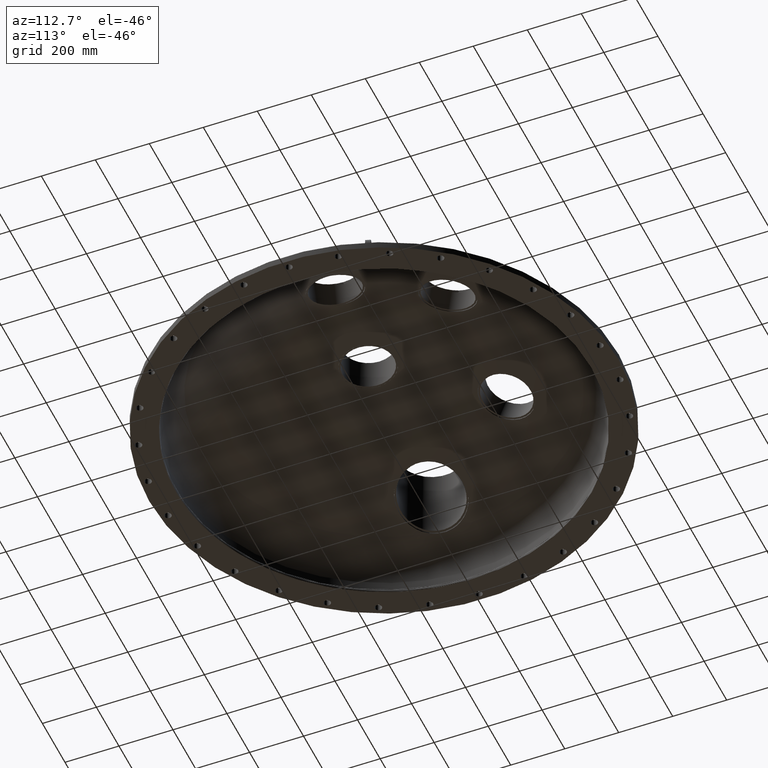
[diagram: clean part render]
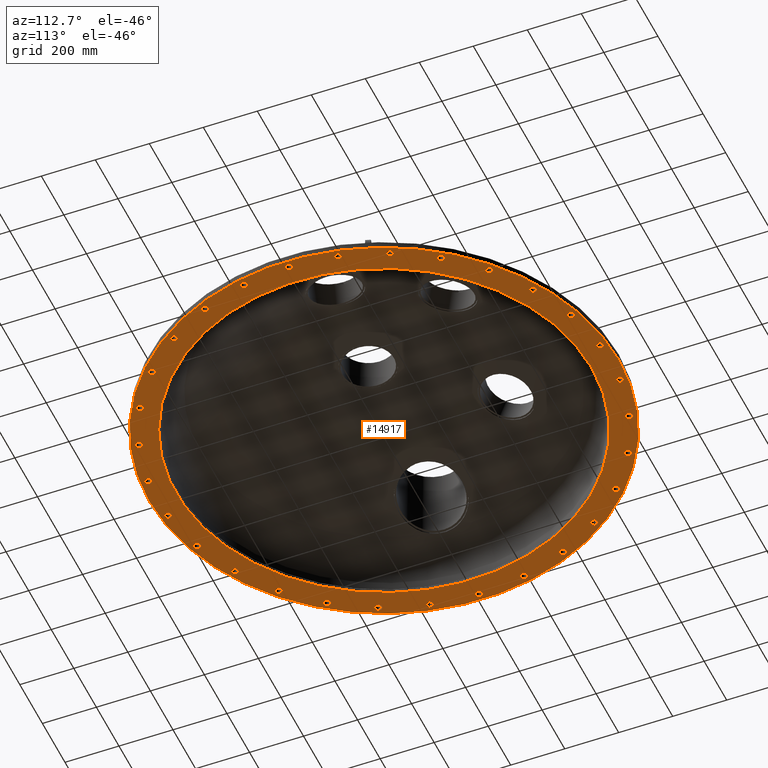
[diagram: same view with one face highlighted and labeled with its STEP entity id]
A machine part, auxiliary view. The second image highlights one B-rep face of the part: STEP entity #14917.
In plain terms, the highlighted planar face has unit normal (-0, 0, -1).
Its self-contained STEP definition (entity closure, byte-faithful):
#36 = VERTEX_POINT ( 'NONE', #17131 ) ;
#45 = VERTEX_POINT ( 'NONE', #23006 ) ;
#155 = AXIS2_PLACEMENT_3D ( 'NONE', #12929, #18678, #1323 ) ;
#189 = CARTESIAN_POINT ( 'NONE',  ( -30.26119328441137668, -12.97315130188538568, -1.076143843439128128E-15 ) ) ;
#289 = ORIENTED_EDGE ( 'NONE', *, *, #23514, .F. ) ;
#350 = AXIS2_PLACEMENT_3D ( 'NONE', #19147, #23032, #7779 ) ;
#366 = ORIENTED_EDGE ( 'NONE', *, *, #19791, .F. ) ;
#410 = EDGE_CURVE ( 'NONE', #12194, #12194, #1667, .T. ) ;
#585 = EDGE_CURVE ( 'NONE', #21558, #21558, #3459, .T. ) ;
#697 = CARTESIAN_POINT ( 'NONE',  ( 16.56249999999963407, -28.68709150035974531, -1.092739197465705287E-15 ) ) ;
#703 = DIRECTION ( 'NONE',  ( -0.0000000000000000000, 3.319070805315438694E-17, -1.000000000000000000 ) ) ;
#709 = VERTEX_POINT ( 'NONE', #12173 ) ;
#743 = ORIENTED_EDGE ( 'NONE', *, *, #9710, .F. ) ;
#840 = CARTESIAN_POINT ( 'NONE',  ( 22.16495133563687858, -24.11667234393895143, -1.076143843439128128E-15 ) ) ;
#988 = FACE_BOUND ( 'NONE', #20936, .T. ) ;
#1067 = AXIS2_PLACEMENT_3D ( 'NONE', #13115, #6971, #1381 ) ;
#1109 = DIRECTION ( 'NONE',  ( -0.0000000000000000000, 3.319070805315438694E-17, -1.000000000000000000 ) ) ;
#1116 = FACE_BOUND ( 'NONE', #19551, .T. ) ;
#1127 = DIRECTION ( 'NONE',  ( -0.0000000000000000000, 3.319070805315438694E-17, -1.000000000000000000 ) ) ;
#1143 = CIRCLE ( 'NONE', #4720, 0.4999999999999973910 ) ;
#1230 = FACE_BOUND ( 'NONE', #2019, .T. ) ;
#1268 = DIRECTION ( 'NONE',  ( 0.0000000000000000000, 1.000000000000000000, 3.319070805315450404E-17 ) ) ;
#1291 = CARTESIAN_POINT ( 'NONE',  ( -33.12500000000000000, 5.649461650897696533E-13, 0.0000000000000000000 ) ) ;
#1323 = DIRECTION ( 'NONE',  ( 0.0000000000000000000, 1.000000000000000000, 3.319070805315450404E-17 ) ) ;
#1381 = DIRECTION ( 'NONE',  ( 0.0000000000000000000, 1.000000000000000000, 3.319070805315450404E-17 ) ) ;
#1393 = EDGE_LOOP ( 'NONE', ( #11438 ) ) ;
#1394 = CARTESIAN_POINT ( 'NONE',  ( 32.40113927430723351, -6.887074758338635583, -1.092739197465705287E-15 ) ) ;
#1405 = EDGE_LOOP ( 'NONE', ( #16371 ) ) ;
#1482 = FACE_BOUND ( 'NONE', #6349, .T. ) ;
#1541 = EDGE_CURVE ( 'NONE', #3334, #3334, #11344, .T. ) ;
#1667 = CIRCLE ( 'NONE', #16798, 0.4999999999999973910 ) ;
#1799 = DIRECTION ( 'NONE',  ( -0.0000000000000000000, 3.319070805315438694E-17, -1.000000000000000000 ) ) ;
#1803 = CARTESIAN_POINT ( 'NONE',  ( 10.23618793867037802, 32.00374710227688269, 1.659535402657718115E-17 ) ) ;
#1810 = EDGE_LOOP ( 'NONE', ( #366 ) ) ;
#1831 = EDGE_CURVE ( 'NONE', #16567, #16567, #15710, .T. ) ;
#1952 = CIRCLE ( 'NONE', #5092, 0.4999999999999973910 ) ;
#1953 = DIRECTION ( 'NONE',  ( 0.0000000000000000000, 1.000000000000000000, 3.319070805315426369E-17 ) ) ;
#2019 = EDGE_LOOP ( 'NONE', ( #18397 ) ) ;
#2243 = DIRECTION ( 'NONE',  ( 0.0000000000000000000, 1.000000000000000000, 3.319070805315450404E-17 ) ) ;
#2278 = EDGE_LOOP ( 'NONE', ( #16097 ) ) ;
#2407 = CARTESIAN_POINT ( 'NONE',  ( 32.40113927430723351, -6.387074758338638247, -1.076143843439128128E-15 ) ) ;
#2414 = CIRCLE ( 'NONE', #16365, 0.4999999999999973910 ) ;
#2553 = CARTESIAN_POINT ( 'NONE',  ( 0.0000000000000000000, 34.25000000000000000, 4.404255335483249784E-17 ) ) ;
#2668 = AXIS2_PLACEMENT_3D ( 'NONE', #8048, #15662, #23286 ) ;
#2697 = AXIS2_PLACEMENT_3D ( 'NONE', #3673, #17157, #7544 ) ;
#2850 = CARTESIAN_POINT ( 'NONE',  ( 30.26119328441100720, -13.47315130188623300, -1.092739197465705287E-15 ) ) ;
#2860 = FACE_BOUND ( 'NONE', #7122, .T. ) ;
#2928 = DIRECTION ( 'NONE',  ( -0.0000000000000000000, 3.319070805315438694E-17, -1.000000000000000000 ) ) ;
#2936 = DIRECTION ( 'NONE',  ( -0.0000000000000000000, 3.319070805315438694E-17, -1.000000000000000000 ) ) ;
#3096 = FACE_BOUND ( 'NONE', #9071, .T. ) ;
#3152 = DIRECTION ( 'NONE',  ( -0.0000000000000000000, 3.319070805315438694E-17, -1.000000000000000000 ) ) ;
#3168 = VERTEX_POINT ( 'NONE', #19888 ) ;
#3216 = DIRECTION ( 'NONE',  ( -0.0000000000000000000, 3.319070805315438694E-17, -1.000000000000000000 ) ) ;
#3334 = VERTEX_POINT ( 'NONE', #6941 ) ;
#3346 = CIRCLE ( 'NONE', #21691, 0.4999999999999973910 ) ;
#3399 = CIRCLE ( 'NONE', #20529, 0.4999999999999973910 ) ;
#3453 = CARTESIAN_POINT ( 'NONE',  ( 33.12500000000000000, -3.485838039915599827E-13, 0.0000000000000000000 ) ) ;
#3459 = CIRCLE ( 'NONE', #2668, 0.4999999999999973910 ) ;
#3640 = VERTEX_POINT ( 'NONE', #21219 ) ;
#3653 = VERTEX_POINT ( 'NONE', #1803 ) ;
#3673 = CARTESIAN_POINT ( 'NONE',  ( 22.16495133563687858, -24.61667234393894788, -1.092739197465705287E-15 ) ) ;
#3787 = CARTESIAN_POINT ( 'NONE',  ( -3.462505345740794382, 32.94353778407408129, 1.092739197465705287E-15 ) ) ;
#4200 = EDGE_CURVE ( 'NONE', #8691, #8691, #1952, .T. ) ;
#4319 = DIRECTION ( 'NONE',  ( -0.0000000000000000000, 3.319070805315438694E-17, -1.000000000000000000 ) ) ;
#4329 = CIRCLE ( 'NONE', #350, 0.4999999999999973910 ) ;
#4538 = ORIENTED_EDGE ( 'NONE', *, *, #21343, .F. ) ;
#4574 = ORIENTED_EDGE ( 'NONE', *, *, #17861, .F. ) ;
#4720 = AXIS2_PLACEMENT_3D ( 'NONE', #1394, #18120, #1268 ) ;
#4878 = DIRECTION ( 'NONE',  ( -0.0000000000000000000, 3.319070805315438694E-17, -1.000000000000000000 ) ) ;
#4944 = FACE_BOUND ( 'NONE', #20340, .T. ) ;
#4973 = DIRECTION ( 'NONE',  ( -0.0000000000000000000, 3.319070805315438694E-17, -1.000000000000000000 ) ) ;
#5000 = CARTESIAN_POINT ( 'NONE',  ( -22.16495133563756070, -24.61667234393834391, -1.092739197465705287E-15 ) ) ;
#5073 = PLANE ( 'NONE',  #14907 ) ;
#5092 = AXIS2_PLACEMENT_3D ( 'NONE', #20017, #2928, #10528 ) ;
#5124 = ORIENTED_EDGE ( 'NONE', *, *, #6311, .F. ) ;
#5196 = EDGE_CURVE ( 'NONE', #20401, #20401, #10124, .T. ) ;
#5261 = DIRECTION ( 'NONE',  ( 0.0000000000000000000, 1.000000000000000000, 3.319070805315438694E-17 ) ) ;
#5324 = FACE_BOUND ( 'NONE', #6558, .T. ) ;
#5343 = ORIENTED_EDGE ( 'NONE', *, *, #8053, .F. ) ;
#5357 = EDGE_LOOP ( 'NONE', ( #18431 ) ) ;
#5483 = EDGE_CURVE ( 'NONE', #7040, #7040, #18535, .T. ) ;
#5675 = ORIENTED_EDGE ( 'NONE', *, *, #11479, .F. ) ;
#5749 = CARTESIAN_POINT ( 'NONE',  ( 3.462505345741263341, 33.44353778407402444, 1.109334551492282250E-15 ) ) ;
#5787 = DIRECTION ( 'NONE',  ( 0.0000000000000000000, 1.000000000000000000, 3.319070805315450404E-17 ) ) ;
#5835 = DIRECTION ( 'NONE',  ( 0.0000000000000000000, 1.000000000000000000, 3.319070805315438694E-17 ) ) ;
#6106 = VERTEX_POINT ( 'NONE', #11976 ) ;
#6145 = VERTEX_POINT ( 'NONE', #13660 ) ;
#6161 = CARTESIAN_POINT ( 'NONE',  ( 0.0000000000000000000, 1.991442483189263278E-18, 0.0000000000000000000 ) ) ;
#6288 = DIRECTION ( 'NONE',  ( -0.0000000000000000000, 3.319070805315438694E-17, -1.000000000000000000 ) ) ;
#6311 = EDGE_CURVE ( 'NONE', #9420, #9420, #3346, .T. ) ;
#6349 = EDGE_LOOP ( 'NONE', ( #19980 ) ) ;
#6383 = CARTESIAN_POINT ( 'NONE',  ( 3.462505345740794382, -32.94353778407408129, -1.092739197465705287E-15 ) ) ;
#6458 = DIRECTION ( 'NONE',  ( -0.0000000000000000000, 3.319070805315438694E-17, -1.000000000000000000 ) ) ;
#6520 = DIRECTION ( 'NONE',  ( 0.0000000000000000000, 1.000000000000000000, 3.319070805315453486E-17 ) ) ;
#6558 = EDGE_LOOP ( 'NONE', ( #14277 ) ) ;
#6566 = DIRECTION ( 'NONE',  ( 0.0000000000000000000, 1.000000000000000000, 3.319070805315450404E-17 ) ) ;
#6602 = AXIS2_PLACEMENT_3D ( 'NONE', #16971, #24590, #2243 ) ;
#6651 = AXIS2_PLACEMENT_3D ( 'NONE', #2850, #1109, #6566 ) ;
#6701 = CARTESIAN_POINT ( 'NONE',  ( 26.79868793866990018, -18.97038648218849133, -1.076143843439128128E-15 ) ) ;
#6706 = FACE_BOUND ( 'NONE', #8394, .T. ) ;
#6824 = FACE_BOUND ( 'NONE', #14022, .T. ) ;
#6871 = AXIS2_PLACEMENT_3D ( 'NONE', #7666, #15296, #5787 ) ;
#6941 = CARTESIAN_POINT ( 'NONE',  ( -3.462505345740794382, 33.44353778407407418, 1.109334551492282250E-15 ) ) ;
#6947 = FACE_BOUND ( 'NONE', #7285, .T. ) ;
#6954 = DIRECTION ( 'NONE',  ( 0.0000000000000000000, 1.000000000000000000, 3.319070805315446090E-17 ) ) ;
#6971 = DIRECTION ( 'NONE',  ( -0.0000000000000000000, 3.319070805315438694E-17, -1.000000000000000000 ) ) ;
#7040 = VERTEX_POINT ( 'NONE', #15053 ) ;
#7122 = EDGE_LOOP ( 'NONE', ( #743 ) ) ;
#7203 = FACE_BOUND ( 'NONE', #18352, .T. ) ;
#7285 = EDGE_LOOP ( 'NONE', ( #18517 ) ) ;
#7488 = CARTESIAN_POINT ( 'NONE',  ( 30.26119328441100720, -12.97315130188623655, -1.076143843439128128E-15 ) ) ;
#7517 = CIRCLE ( 'NONE', #18697, 0.4999999999999973910 ) ;
#7544 = DIRECTION ( 'NONE',  ( 0.0000000000000000000, 1.000000000000000000, 3.319070805315450404E-17 ) ) ;
#7573 = DIRECTION ( 'NONE',  ( 0.0000000000000000000, -3.319070805315438694E-17, 1.000000000000000000 ) ) ;
#7666 = CARTESIAN_POINT ( 'NONE',  ( -32.40113927430742535, -6.887074758337734082, -1.092739197465705287E-15 ) ) ;
#7779 = DIRECTION ( 'NONE',  ( 0.0000000000000000000, 1.000000000000000000, 3.319070805315438694E-17 ) ) ;
#7896 = EDGE_LOOP ( 'NONE', ( #11176 ) ) ;
#8048 = CARTESIAN_POINT ( 'NONE',  ( 32.40113927430738983, 6.887074758337955238, 0.0000000000000000000 ) ) ;
#8053 = EDGE_CURVE ( 'NONE', #12393, #12393, #4329, .T. ) ;
#8162 = AXIS2_PLACEMENT_3D ( 'NONE', #6383, #4878, #12509 ) ;
#8278 = VERTEX_POINT ( 'NONE', #14040 ) ;
#8394 = EDGE_LOOP ( 'NONE', ( #22949 ) ) ;
#8407 = CIRCLE ( 'NONE', #9970, 0.4999999999999973910 ) ;
#8663 = AXIS2_PLACEMENT_3D ( 'NONE', #697, #2936, #17920 ) ;
#8691 = VERTEX_POINT ( 'NONE', #21919 ) ;
#8722 = FACE_BOUND ( 'NONE', #11186, .T. ) ;
#8811 = CARTESIAN_POINT ( 'NONE',  ( -32.40113927430742535, -6.387074758337736746, -1.076143843439128128E-15 ) ) ;
#8834 = FACE_OUTER_BOUND ( 'NONE', #8874, .T. ) ;
#8854 = ORIENTED_EDGE ( 'NONE', *, *, #1831, .F. ) ;
#8874 = EDGE_LOOP ( 'NONE', ( #20641 ) ) ;
#9071 = EDGE_LOOP ( 'NONE', ( #22350 ) ) ;
#9072 = ORIENTED_EDGE ( 'NONE', *, *, #12721, .F. ) ;
#9262 = DIRECTION ( 'NONE',  ( 0.0000000000000000000, 1.000000000000000000, 3.319070805315426369E-17 ) ) ;
#9312 = ORIENTED_EDGE ( 'NONE', *, *, #12318, .T. ) ;
#9420 = VERTEX_POINT ( 'NONE', #17390 ) ;
#9425 = CIRCLE ( 'NONE', #1067, 0.4999999999999973910 ) ;
#9599 = EDGE_LOOP ( 'NONE', ( #9072 ) ) ;
#9710 = EDGE_CURVE ( 'NONE', #3640, #3640, #22545, .T. ) ;
#9762 = EDGE_CURVE ( 'NONE', #22876, #22876, #3399, .T. ) ;
#9970 = AXIS2_PLACEMENT_3D ( 'NONE', #15153, #1799, #20861 ) ;
#9991 = CIRCLE ( 'NONE', #14416, 0.4999999999999973910 ) ;
#10124 = CIRCLE ( 'NONE', #16150, 0.4999999999999973910 ) ;
#10291 = CARTESIAN_POINT ( 'NONE',  ( 26.79868793867031229, 19.47038648218792645, 0.0000000000000000000 ) ) ;
#10297 = EDGE_CURVE ( 'NONE', #36, #36, #9425, .T. ) ;
#10366 = EDGE_CURVE ( 'NONE', #13260, #13260, #15795, .T. ) ;
#10378 = DIRECTION ( 'NONE',  ( 0.0000000000000000000, 1.000000000000000000, 3.319070805315450404E-17 ) ) ;
#10427 = CARTESIAN_POINT ( 'NONE',  ( 16.56249999999963407, -28.18709150035974531, -1.076143843439128128E-15 ) ) ;
#10451 = FACE_BOUND ( 'NONE', #18733, .T. ) ;
#10509 = CARTESIAN_POINT ( 'NONE',  ( 10.23618793866972254, -31.50374710227709585, -1.092739197465705287E-15 ) ) ;
#10528 = DIRECTION ( 'NONE',  ( 0.0000000000000000000, 1.000000000000000000, 3.319070805315438694E-17 ) ) ;
#10571 = AXIS2_PLACEMENT_3D ( 'NONE', #1291, #11007, #5261 ) ;
#10613 = DIRECTION ( 'NONE',  ( 0.0000000000000000000, 1.000000000000000000, 3.319070805315438694E-17 ) ) ;
#10628 = CIRCLE ( 'NONE', #6651, 0.4999999999999973910 ) ;
#10630 = AXIS2_PLACEMENT_3D ( 'NONE', #11025, #16412, #24145 ) ;
#10642 = CIRCLE ( 'NONE', #22637, 0.4999999999999973910 ) ;
#10700 = FACE_BOUND ( 'NONE', #1810, .T. ) ;
#10877 = CARTESIAN_POINT ( 'NONE',  ( 3.462505345741263341, 32.94353778407403155, 1.092739197465705287E-15 ) ) ;
#10903 = CIRCLE ( 'NONE', #15889, 34.25000000000000000 ) ;
#11007 = DIRECTION ( 'NONE',  ( -0.0000000000000000000, 3.319070805315438694E-17, -1.000000000000000000 ) ) ;
#11021 = EDGE_CURVE ( 'NONE', #13870, #13870, #23334, .T. ) ;
#11025 = CARTESIAN_POINT ( 'NONE',  ( -26.79868793866976517, 19.47038648218867607, 0.0000000000000000000 ) ) ;
#11164 = CARTESIAN_POINT ( 'NONE',  ( 26.79868793867031229, 19.97038648218792289, 1.659535402657710719E-17 ) ) ;
#11176 = ORIENTED_EDGE ( 'NONE', *, *, #9762, .F. ) ;
#11186 = EDGE_LOOP ( 'NONE', ( #19158 ) ) ;
#11344 = CIRCLE ( 'NONE', #20917, 0.4999999999999973910 ) ;
#11397 = DIRECTION ( 'NONE',  ( -0.0000000000000000000, 3.319070805315438694E-17, -1.000000000000000000 ) ) ;
#11438 = ORIENTED_EDGE ( 'NONE', *, *, #10297, .F. ) ;
#11472 = VERTEX_POINT ( 'NONE', #7488 ) ;
#11479 = EDGE_CURVE ( 'NONE', #6106, #6106, #10642, .T. ) ;
#11553 = DIRECTION ( 'NONE',  ( 0.0000000000000000000, 1.000000000000000000, 3.319070805315438694E-17 ) ) ;
#11592 = ORIENTED_EDGE ( 'NONE', *, *, #585, .F. ) ;
#11600 = CIRCLE ( 'NONE', #14437, 0.4999999999999973910 ) ;
#11620 = VERTEX_POINT ( 'NONE', #2407 ) ;
#11766 = VERTEX_POINT ( 'NONE', #2553 ) ;
#11976 = CARTESIAN_POINT ( 'NONE',  ( -30.26119328441090062, 13.97315130188644083, 1.659535402657710719E-17 ) ) ;
#12173 = CARTESIAN_POINT ( 'NONE',  ( 0.0000000000000000000, 30.30999999999999872, 1.006010361091109496E-15 ) ) ;
#12194 = VERTEX_POINT ( 'NONE', #6701 ) ;
#12318 = EDGE_CURVE ( 'NONE', #709, #709, #18621, .T. ) ;
#12393 = VERTEX_POINT ( 'NONE', #16151 ) ;
#12458 = DIRECTION ( 'NONE',  ( 0.0000000000000000000, 1.000000000000000000, 3.319070805315438694E-17 ) ) ;
#12509 = DIRECTION ( 'NONE',  ( 0.0000000000000000000, 1.000000000000000000, 3.319070805315450404E-17 ) ) ;
#12516 = CIRCLE ( 'NONE', #155, 0.4999999999999973910 ) ;
#12518 = EDGE_CURVE ( 'NONE', #23560, #23560, #15051, .T. ) ;
#12573 = FACE_BOUND ( 'NONE', #9599, .T. ) ;
#12581 = CARTESIAN_POINT ( 'NONE',  ( -10.23618793866951115, 31.50374710227715980, 0.0000000000000000000 ) ) ;
#12702 = FACE_BOUND ( 'NONE', #2278, .T. ) ;
#12721 = EDGE_CURVE ( 'NONE', #23677, #23677, #17824, .T. ) ;
#12736 = CARTESIAN_POINT ( 'NONE',  ( -26.79868793866976517, 19.97038648218867607, 1.659535402657710719E-17 ) ) ;
#12800 = VERTEX_POINT ( 'NONE', #8811 ) ;
#12929 = CARTESIAN_POINT ( 'NONE',  ( -30.26119328441137668, -13.47315130188538390, -1.092739197465705287E-15 ) ) ;
#13115 = CARTESIAN_POINT ( 'NONE',  ( -16.56250000000043343, -28.68709150035927991, -1.092739197465705287E-15 ) ) ;
#13260 = VERTEX_POINT ( 'NONE', #24626 ) ;
#13384 = AXIS2_PLACEMENT_3D ( 'NONE', #17466, #6458, #21085 ) ;
#13602 = CARTESIAN_POINT ( 'NONE',  ( -26.79868793867044729, -19.47038648218774171, -1.092739197465705287E-15 ) ) ;
#13660 = CARTESIAN_POINT ( 'NONE',  ( -26.79868793867044729, -18.97038648218774171, -1.076143843439128128E-15 ) ) ;
#13870 = VERTEX_POINT ( 'NONE', #15722 ) ;
#14022 = EDGE_LOOP ( 'NONE', ( #23367 ) ) ;
#14040 = CARTESIAN_POINT ( 'NONE',  ( -10.23618793866951115, 32.00374710227715980, 1.659535402657714417E-17 ) ) ;
#14088 = DIRECTION ( 'NONE',  ( 0.0000000000000000000, 1.000000000000000000, 3.319070805315450404E-17 ) ) ;
#14141 = VERTEX_POINT ( 'NONE', #18371 ) ;
#14194 = DIRECTION ( 'NONE',  ( 0.0000000000000000000, 1.000000000000000000, 3.319070805315438694E-17 ) ) ;
#14277 = ORIENTED_EDGE ( 'NONE', *, *, #16507, .F. ) ;
#14357 = FACE_BOUND ( 'NONE', #16442, .T. ) ;
#14397 = EDGE_CURVE ( 'NONE', #20032, #20032, #18463, .T. ) ;
#14416 = AXIS2_PLACEMENT_3D ( 'NONE', #17798, #703, #14194 ) ;
#14437 = AXIS2_PLACEMENT_3D ( 'NONE', #17552, #4319, #16057 ) ;
#14467 = FACE_BOUND ( 'NONE', #15736, .T. ) ;
#14582 = CARTESIAN_POINT ( 'NONE',  ( 0.0000000000000000000, 34.25000000000000000, 1.092739197465705287E-15 ) ) ;
#14807 = ORIENTED_EDGE ( 'NONE', *, *, #20318, .F. ) ;
#14907 = AXIS2_PLACEMENT_3D ( 'NONE', #14582, #3216, #12458 ) ;
#14914 = EDGE_LOOP ( 'NONE', ( #15327 ) ) ;
#14917 = ADVANCED_FACE ( 'NONE', ( #23836, #1116, #6947, #8722, #1482, #16341, #22064, #6706, #4944, #5324, #12702, #23953, #21947, #6824, #10700, #14467, #2860, #19938, #12573, #10451, #18081, #20306, #14357, #18334, #18576, #20181, #988, #3096, #7203, #24071, #1230, #8834 ), #5073, .T. ) ;
#15051 = CIRCLE ( 'NONE', #8663, 0.4999999999999973910 ) ;
#15053 = CARTESIAN_POINT ( 'NONE',  ( 3.462505345740794382, -32.44353778407408129, -1.076143843439128128E-15 ) ) ;
#15085 = CARTESIAN_POINT ( 'NONE',  ( -22.16495133563756070, -24.11667234393834747, -1.076143843439128128E-15 ) ) ;
#15153 = CARTESIAN_POINT ( 'NONE',  ( 30.26119328441128076, 13.47315130188559529, 0.0000000000000000000 ) ) ;
#15296 = DIRECTION ( 'NONE',  ( -0.0000000000000000000, 3.319070805315438694E-17, -1.000000000000000000 ) ) ;
#15327 = ORIENTED_EDGE ( 'NONE', *, *, #12518, .F. ) ;
#15410 = EDGE_CURVE ( 'NONE', #12800, #12800, #24426, .T. ) ;
#15651 = ORIENTED_EDGE ( 'NONE', *, *, #15410, .F. ) ;
#15662 = DIRECTION ( 'NONE',  ( -0.0000000000000000000, 3.319070805315438694E-17, -1.000000000000000000 ) ) ;
#15710 = CIRCLE ( 'NONE', #23302, 0.4999999999999973910 ) ;
#15722 = CARTESIAN_POINT ( 'NONE',  ( -33.12500000000000000, 0.5000000000005623280, 1.659535402657710719E-17 ) ) ;
#15736 = EDGE_LOOP ( 'NONE', ( #18848 ) ) ;
#15795 = CIRCLE ( 'NONE', #6602, 0.4999999999999973910 ) ;
#15889 = AXIS2_PLACEMENT_3D ( 'NONE', #22351, #24230, #10613 ) ;
#16057 = DIRECTION ( 'NONE',  ( 0.0000000000000000000, 1.000000000000000000, 3.319070805315450404E-17 ) ) ;
#16097 = ORIENTED_EDGE ( 'NONE', *, *, #17497, .F. ) ;
#16150 = AXIS2_PLACEMENT_3D ( 'NONE', #10291, #6288, #5835 ) ;
#16151 = CARTESIAN_POINT ( 'NONE',  ( -32.40113927430719087, 7.387074758338838976, 1.659535402657710719E-17 ) ) ;
#16276 = DIRECTION ( 'NONE',  ( 0.0000000000000000000, 1.000000000000000000, 3.319070805315421438E-17 ) ) ;
#16341 = FACE_BOUND ( 'NONE', #23886, .T. ) ;
#16365 = AXIS2_PLACEMENT_3D ( 'NONE', #23640, #19510, #6520 ) ;
#16371 = ORIENTED_EDGE ( 'NONE', *, *, #5196, .F. ) ;
#16374 = VERTEX_POINT ( 'NONE', #12736 ) ;
#16412 = DIRECTION ( 'NONE',  ( -0.0000000000000000000, 3.319070805315438694E-17, -1.000000000000000000 ) ) ;
#16442 = EDGE_LOOP ( 'NONE', ( #5124 ) ) ;
#16507 = EDGE_CURVE ( 'NONE', #19153, #19153, #12516, .T. ) ;
#16567 = VERTEX_POINT ( 'NONE', #15085 ) ;
#16607 = CARTESIAN_POINT ( 'NONE',  ( -30.26119328441090062, 13.47315130188644261, 0.0000000000000000000 ) ) ;
#16693 = EDGE_LOOP ( 'NONE', ( #11592 ) ) ;
#16798 = AXIS2_PLACEMENT_3D ( 'NONE', #21305, #23443, #14088 ) ;
#16971 = CARTESIAN_POINT ( 'NONE',  ( -10.23618793867058763, -31.50374710227681518, -1.092739197465705287E-15 ) ) ;
#17106 = DIRECTION ( 'NONE',  ( -0.0000000000000000000, 3.319070805315438694E-17, -1.000000000000000000 ) ) ;
#17131 = CARTESIAN_POINT ( 'NONE',  ( -16.56250000000043343, -28.18709150035928346, -1.076143843439128128E-15 ) ) ;
#17157 = DIRECTION ( 'NONE',  ( -0.0000000000000000000, 3.319070805315438694E-17, -1.000000000000000000 ) ) ;
#17390 = CARTESIAN_POINT ( 'NONE',  ( 33.12500000000000000, 0.4999999999996488365, 1.659535402657710719E-17 ) ) ;
#17414 = EDGE_CURVE ( 'NONE', #11766, #11766, #10903, .T. ) ;
#17466 = CARTESIAN_POINT ( 'NONE',  ( -16.56249999999944933, 28.68709150035985900, 0.0000000000000000000 ) ) ;
#17486 = DIRECTION ( 'NONE',  ( 0.0000000000000000000, 1.000000000000000000, 3.319070805315453486E-17 ) ) ;
#17497 = EDGE_CURVE ( 'NONE', #6145, #6145, #7517, .T. ) ;
#17552 = CARTESIAN_POINT ( 'NONE',  ( -3.462505345741488050, -32.94353778407400313, -1.092739197465705287E-15 ) ) ;
#17798 = CARTESIAN_POINT ( 'NONE',  ( -22.16495133563671160, 24.61667234393910419, 0.0000000000000000000 ) ) ;
#17824 = CIRCLE ( 'NONE', #2697, 0.4999999999999973910 ) ;
#17861 = EDGE_CURVE ( 'NONE', #8278, #8278, #22704, .T. ) ;
#17920 = DIRECTION ( 'NONE',  ( 0.0000000000000000000, 1.000000000000000000, 3.319070805315450404E-17 ) ) ;
#18081 = FACE_BOUND ( 'NONE', #19155, .T. ) ;
#18120 = DIRECTION ( 'NONE',  ( -0.0000000000000000000, 3.319070805315438694E-17, -1.000000000000000000 ) ) ;
#18137 = DIRECTION ( 'NONE',  ( -0.0000000000000000000, 3.319070805315438694E-17, -1.000000000000000000 ) ) ;
#18315 = EDGE_LOOP ( 'NONE', ( #8854 ) ) ;
#18329 = CARTESIAN_POINT ( 'NONE',  ( 32.40113927430738983, 7.387074758337952574, 1.659535402657710719E-17 ) ) ;
#18334 = FACE_BOUND ( 'NONE', #16693, .T. ) ;
#18352 = EDGE_LOOP ( 'NONE', ( #14807 ) ) ;
#18371 = CARTESIAN_POINT ( 'NONE',  ( -16.56249999999944933, 29.18709150035985544, 1.659535402657718115E-17 ) ) ;
#18397 = ORIENTED_EDGE ( 'NONE', *, *, #1541, .F. ) ;
#18431 = ORIENTED_EDGE ( 'NONE', *, *, #20455, .F. ) ;
#18463 = CIRCLE ( 'NONE', #22455, 0.4999999999999973910 ) ;
#18517 = ORIENTED_EDGE ( 'NONE', *, *, #21697, .F. ) ;
#18535 = CIRCLE ( 'NONE', #8162, 0.4999999999999973910 ) ;
#18576 = FACE_BOUND ( 'NONE', #5357, .T. ) ;
#18621 = CIRCLE ( 'NONE', #24195, 30.30999999999999872 ) ;
#18678 = DIRECTION ( 'NONE',  ( -0.0000000000000000000, 3.319070805315438694E-17, -1.000000000000000000 ) ) ;
#18697 = AXIS2_PLACEMENT_3D ( 'NONE', #13602, #17106, #20832 ) ;
#18733 = EDGE_LOOP ( 'NONE', ( #19597 ) ) ;
#18848 = ORIENTED_EDGE ( 'NONE', *, *, #5483, .F. ) ;
#19147 = CARTESIAN_POINT ( 'NONE',  ( -32.40113927430719087, 6.887074758338841640, 0.0000000000000000000 ) ) ;
#19153 = VERTEX_POINT ( 'NONE', #189 ) ;
#19155 = EDGE_LOOP ( 'NONE', ( #289 ) ) ;
#19158 = ORIENTED_EDGE ( 'NONE', *, *, #19382, .F. ) ;
#19382 = EDGE_CURVE ( 'NONE', #3168, #3168, #9991, .T. ) ;
#19510 = DIRECTION ( 'NONE',  ( -0.0000000000000000000, 3.319070805315438694E-17, -1.000000000000000000 ) ) ;
#19551 = EDGE_LOOP ( 'NONE', ( #4574 ) ) ;
#19597 = ORIENTED_EDGE ( 'NONE', *, *, #410, .F. ) ;
#19716 = AXIS2_PLACEMENT_3D ( 'NONE', #10509, #18137, #16276 ) ;
#19791 = EDGE_CURVE ( 'NONE', #24390, #24390, #11600, .T. ) ;
#19888 = CARTESIAN_POINT ( 'NONE',  ( -22.16495133563671160, 25.11667234393910419, 1.659535402657710719E-17 ) ) ;
#19938 = FACE_BOUND ( 'NONE', #14914, .T. ) ;
#19980 = ORIENTED_EDGE ( 'NONE', *, *, #22356, .F. ) ;
#20017 = CARTESIAN_POINT ( 'NONE',  ( 22.16495133563739728, 24.61667234393849313, 0.0000000000000000000 ) ) ;
#20032 = VERTEX_POINT ( 'NONE', #24049 ) ;
#20174 = DIRECTION ( 'NONE',  ( 0.0000000000000000000, 1.000000000000000000, 3.319070805315438694E-17 ) ) ;
#20181 = FACE_BOUND ( 'NONE', #1405, .T. ) ;
#20220 = ORIENTED_EDGE ( 'NONE', *, *, #4200, .F. ) ;
#20306 = FACE_BOUND ( 'NONE', #21928, .T. ) ;
#20318 = EDGE_CURVE ( 'NONE', #3653, #3653, #2414, .T. ) ;
#20340 = EDGE_LOOP ( 'NONE', ( #15651 ) ) ;
#20401 = VERTEX_POINT ( 'NONE', #11164 ) ;
#20455 = EDGE_CURVE ( 'NONE', #45, #45, #8407, .T. ) ;
#20529 = AXIS2_PLACEMENT_3D ( 'NONE', #10877, #24493, #9262 ) ;
#20641 = ORIENTED_EDGE ( 'NONE', *, *, #17414, .T. ) ;
#20832 = DIRECTION ( 'NONE',  ( 0.0000000000000000000, 1.000000000000000000, 3.319070805315450404E-17 ) ) ;
#20861 = DIRECTION ( 'NONE',  ( 0.0000000000000000000, 1.000000000000000000, 3.319070805315438694E-17 ) ) ;
#20917 = AXIS2_PLACEMENT_3D ( 'NONE', #3787, #11397, #1953 ) ;
#20936 = EDGE_LOOP ( 'NONE', ( #20220 ) ) ;
#21085 = DIRECTION ( 'NONE',  ( 0.0000000000000000000, 1.000000000000000000, 3.319070805315453486E-17 ) ) ;
#21086 = AXIS2_PLACEMENT_3D ( 'NONE', #12581, #1127, #6954 ) ;
#21219 = CARTESIAN_POINT ( 'NONE',  ( 10.23618793866972254, -31.00374710227709585, -1.076143843439128128E-15 ) ) ;
#21305 = CARTESIAN_POINT ( 'NONE',  ( 26.79868793866990018, -19.47038648218849133, -1.092739197465705287E-15 ) ) ;
#21343 = EDGE_CURVE ( 'NONE', #11620, #11620, #1143, .T. ) ;
#21394 = CIRCLE ( 'NONE', #10630, 0.4999999999999973910 ) ;
#21558 = VERTEX_POINT ( 'NONE', #18329 ) ;
#21691 = AXIS2_PLACEMENT_3D ( 'NONE', #3453, #24180, #20174 ) ;
#21697 = EDGE_CURVE ( 'NONE', #14141, #14141, #21752, .T. ) ;
#21752 = CIRCLE ( 'NONE', #13384, 0.4999999999999973910 ) ;
#21919 = CARTESIAN_POINT ( 'NONE',  ( 22.16495133563739728, 25.11667234393848958, 1.659535402657710719E-17 ) ) ;
#21928 = EDGE_LOOP ( 'NONE', ( #4538 ) ) ;
#21947 = FACE_BOUND ( 'NONE', #1393, .T. ) ;
#22064 = FACE_BOUND ( 'NONE', #23594, .T. ) ;
#22169 = EDGE_LOOP ( 'NONE', ( #9312 ) ) ;
#22350 = ORIENTED_EDGE ( 'NONE', *, *, #14397, .F. ) ;
#22351 = CARTESIAN_POINT ( 'NONE',  ( 0.0000000000000000000, -4.463698593079009403E-17, -1.092739197465705287E-15 ) ) ;
#22356 = EDGE_CURVE ( 'NONE', #16374, #16374, #21394, .T. ) ;
#22455 = AXIS2_PLACEMENT_3D ( 'NONE', #22994, #22759, #17486 ) ;
#22545 = CIRCLE ( 'NONE', #19716, 0.5000000000000017764 ) ;
#22637 = AXIS2_PLACEMENT_3D ( 'NONE', #16607, #4973, #24099 ) ;
#22704 = CIRCLE ( 'NONE', #21086, 0.4999999999999973910 ) ;
#22759 = DIRECTION ( 'NONE',  ( -0.0000000000000000000, 3.319070805315438694E-17, -1.000000000000000000 ) ) ;
#22876 = VERTEX_POINT ( 'NONE', #5749 ) ;
#22949 = ORIENTED_EDGE ( 'NONE', *, *, #11021, .F. ) ;
#22994 = CARTESIAN_POINT ( 'NONE',  ( 16.56250000000023448, 28.68709150035939359, 0.0000000000000000000 ) ) ;
#23006 = CARTESIAN_POINT ( 'NONE',  ( 30.26119328441128076, 13.97315130188559174, 1.659535402657710719E-17 ) ) ;
#23032 = DIRECTION ( 'NONE',  ( -0.0000000000000000000, 3.319070805315438694E-17, -1.000000000000000000 ) ) ;
#23286 = DIRECTION ( 'NONE',  ( 0.0000000000000000000, 1.000000000000000000, 3.319070805315438694E-17 ) ) ;
#23302 = AXIS2_PLACEMENT_3D ( 'NONE', #5000, #3152, #10378 ) ;
#23334 = CIRCLE ( 'NONE', #10571, 0.4999999999999973910 ) ;
#23367 = ORIENTED_EDGE ( 'NONE', *, *, #10366, .F. ) ;
#23443 = DIRECTION ( 'NONE',  ( -0.0000000000000000000, 3.319070805315438694E-17, -1.000000000000000000 ) ) ;
#23514 = EDGE_CURVE ( 'NONE', #11472, #11472, #10628, .T. ) ;
#23560 = VERTEX_POINT ( 'NONE', #10427 ) ;
#23594 = EDGE_LOOP ( 'NONE', ( #5343 ) ) ;
#23640 = CARTESIAN_POINT ( 'NONE',  ( 10.23618793867037802, 31.50374710227688269, 0.0000000000000000000 ) ) ;
#23677 = VERTEX_POINT ( 'NONE', #840 ) ;
#23836 = FACE_BOUND ( 'NONE', #22169, .T. ) ;
#23886 = EDGE_LOOP ( 'NONE', ( #5675 ) ) ;
#23953 = FACE_BOUND ( 'NONE', #18315, .T. ) ;
#24049 = CARTESIAN_POINT ( 'NONE',  ( 16.56250000000023448, 29.18709150035939359, 1.659535402657718115E-17 ) ) ;
#24071 = FACE_BOUND ( 'NONE', #7896, .T. ) ;
#24099 = DIRECTION ( 'NONE',  ( 0.0000000000000000000, 1.000000000000000000, 3.319070805315438694E-17 ) ) ;
#24145 = DIRECTION ( 'NONE',  ( 0.0000000000000000000, 1.000000000000000000, 3.319070805315438694E-17 ) ) ;
#24180 = DIRECTION ( 'NONE',  ( -0.0000000000000000000, 3.319070805315438694E-17, -1.000000000000000000 ) ) ;
#24195 = AXIS2_PLACEMENT_3D ( 'NONE', #6161, #7573, #11553 ) ;
#24230 = DIRECTION ( 'NONE',  ( -0.0000000000000000000, 3.319070805315438694E-17, -1.000000000000000000 ) ) ;
#24390 = VERTEX_POINT ( 'NONE', #24508 ) ;
#24426 = CIRCLE ( 'NONE', #6871, 0.4999999999999973910 ) ;
#24493 = DIRECTION ( 'NONE',  ( -0.0000000000000000000, 3.319070805315438694E-17, -1.000000000000000000 ) ) ;
#24508 = CARTESIAN_POINT ( 'NONE',  ( -3.462505345741488050, -32.44353778407400313, -1.076143843439128128E-15 ) ) ;
#24590 = DIRECTION ( 'NONE',  ( -0.0000000000000000000, 3.319070805315438694E-17, -1.000000000000000000 ) ) ;
#24626 = CARTESIAN_POINT ( 'NONE',  ( -10.23618793867058763, -31.00374710227681874, -1.076143843439128128E-15 ) ) ;